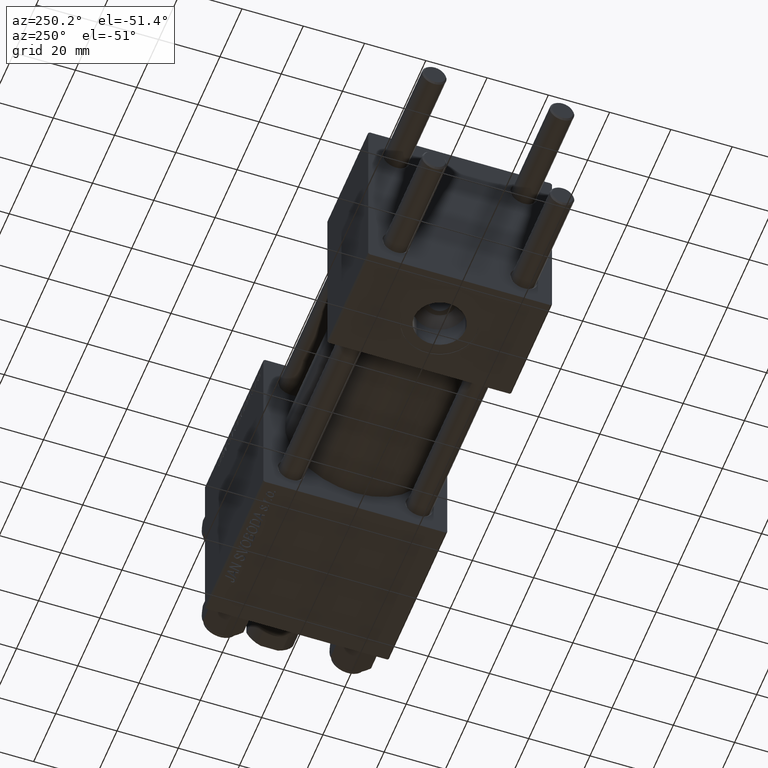
[diagram: clean part render]
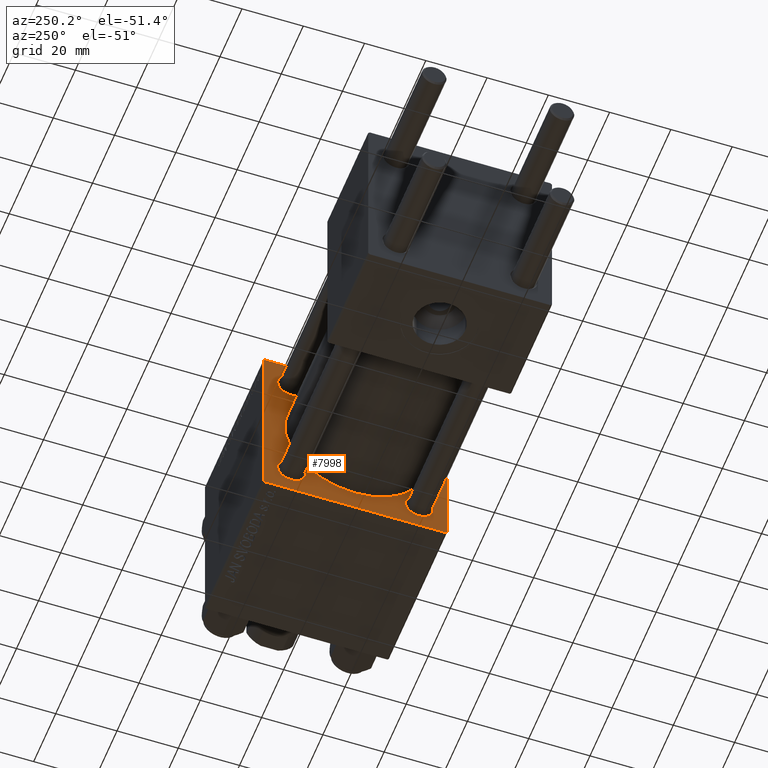
[diagram: same view with one face highlighted and labeled with its STEP entity id]
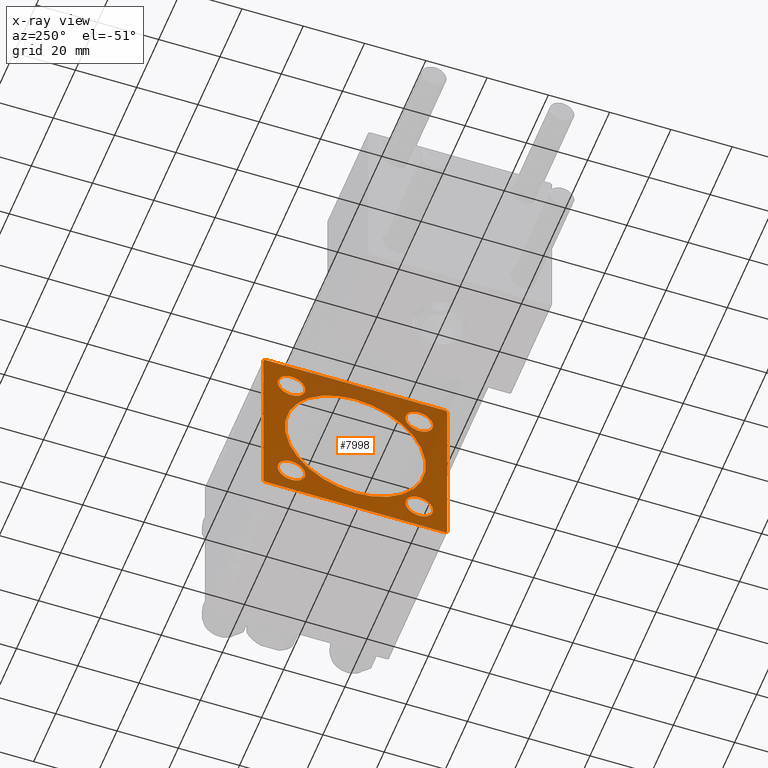
[diagram: x-ray of the same camera — body ghosted, the highlighted face saturated]
A machine part, auxiliary view. The second image highlights one B-rep face of the part: STEP entity #7998.
The next image is the same camera in x-ray: the body ghosted, the highlighted face saturated — about 37% of this face is hidden behind the body in this view.
In plain terms, the highlighted planar face has unit normal (-1, 0, 0).
Its self-contained STEP definition (entity closure, byte-faithful):
#104 = CARTESIAN_POINT ( 'NONE',  ( 95.00000000000000000, 20.84999999999999787, -20.85000000000000142 ) ) ;
#160 = ORIENTED_EDGE ( 'NONE', *, *, #10586, .T. ) ;
#241 = CARTESIAN_POINT ( 'NONE',  ( 95.00000000000000000, 20.84999999999999787, 25.35000000000000497 ) ) ;
#403 = EDGE_CURVE ( 'NONE', #39209, #12441, #2060, .T. ) ;
#628 = VECTOR ( 'NONE', #6185, 1000.000000000000000 ) ;
#704 = DIRECTION ( 'NONE',  ( -0.000000000000000000, -0.7071067811865474617, -0.7071067811865474617 ) ) ;
#978 = CARTESIAN_POINT ( 'NONE',  ( 95.00000000000000000, -29.74999999999999645, -29.74999999999999645 ) ) ;
#1209 = CARTESIAN_POINT ( 'NONE',  ( 95.00000000000000000, 0.000000000000000000, 23.00000000000000000 ) ) ;
#1440 = CIRCLE ( 'NONE', #48973, 4.500000000000003553 ) ;
#1507 = CARTESIAN_POINT ( 'NONE',  ( 95.00000000000000000, 20.84999999999999787, 20.85000000000000142 ) ) ;
#1607 = VERTEX_POINT ( 'NONE', #25981 ) ;
#1696 = DIRECTION ( 'NONE',  ( 0.000000000000000000, 0.000000000000000000, 1.000000000000000000 ) ) ;
#1842 = ORIENTED_EDGE ( 'NONE', *, *, #20306, .T. ) ;
#1906 = EDGE_CURVE ( 'NONE', #12441, #39209, #23956, .T. ) ;
#1926 = EDGE_LOOP ( 'NONE', ( #31757, #39170 ) ) ;
#2060 = CIRCLE ( 'NONE', #22978, 23.00000000000000000 ) ;
#2186 = DIRECTION ( 'NONE',  ( 0.000000000000000000, 0.7071067811865474617, -0.7071067811865474617 ) ) ;
#2262 = CIRCLE ( 'NONE', #28860, 4.500000000000003553 ) ;
#2539 = VERTEX_POINT ( 'NONE', #30198 ) ;
#2573 = DIRECTION ( 'NONE',  ( 0.000000000000000000, 0.000000000000000000, -1.000000000000000000 ) ) ;
#2684 = LINE ( 'NONE', #25655, #18328 ) ;
#2752 = CARTESIAN_POINT ( 'NONE',  ( 95.00000000000000000, -30.00000000000000000, 29.49999999999999289 ) ) ;
#3003 = EDGE_CURVE ( 'NONE', #42120, #2539, #8818, .T. ) ;
#3127 = DIRECTION ( 'NONE',  ( 0.000000000000000000, 0.000000000000000000, -1.000000000000000000 ) ) ;
#3581 = VERTEX_POINT ( 'NONE', #39211 ) ;
#3850 = EDGE_CURVE ( 'NONE', #37205, #1607, #27964, .T. ) ;
#3858 = CARTESIAN_POINT ( 'NONE',  ( 95.00000000000000000, 20.84999999999999787, -16.34999999999999787 ) ) ;
#3968 = FACE_BOUND ( 'NONE', #37602, .T. ) ;
#4087 = DIRECTION ( 'NONE',  ( 0.000000000000000000, -0.7071067811865474617, 0.7071067811865474617 ) ) ;
#4159 = DIRECTION ( 'NONE',  ( 0.000000000000000000, 0.000000000000000000, -1.000000000000000000 ) ) ;
#4222 = AXIS2_PLACEMENT_3D ( 'NONE', #49653, #46113, #35007 ) ;
#5252 = CARTESIAN_POINT ( 'NONE',  ( 95.00000000000000000, -29.74999999999999645, 29.74999999999999645 ) ) ;
#5544 = VERTEX_POINT ( 'NONE', #19716 ) ;
#6185 = DIRECTION ( 'NONE',  ( 0.000000000000000000, -1.000000000000000000, -1.156482317317871478E-16 ) ) ;
#6378 = CARTESIAN_POINT ( 'NONE',  ( 95.00000000000000000, 0.000000000000000000, 0.000000000000000000 ) ) ;
#7673 = CARTESIAN_POINT ( 'NONE',  ( 95.00000000000000000, -30.00000000000000000, 29.99999999999999289 ) ) ;
#7810 = ORIENTED_EDGE ( 'NONE', *, *, #22479, .T. ) ;
#7998 = ADVANCED_FACE ( 'NONE', ( #3968, #30716, #34260, #43083, #31462, #19614 ), #18869, .T. ) ;
#8400 = VECTOR ( 'NONE', #4087, 1000.000000000000114 ) ;
#8438 = EDGE_LOOP ( 'NONE', ( #31321, #29236 ) ) ;
#8791 = DIRECTION ( 'NONE',  ( -0.000000000000000000, 0.7071067811865474617, 0.7071067811865474617 ) ) ;
#8818 = LINE ( 'NONE', #978, #8400 ) ;
#9492 = EDGE_CURVE ( 'NONE', #5544, #24647, #12333, .T. ) ;
#9502 = CARTESIAN_POINT ( 'NONE',  ( 95.00000000000000000, -20.84999999999999076, 25.35000000000000853 ) ) ;
#9745 = ORIENTED_EDGE ( 'NONE', *, *, #10522, .T. ) ;
#10341 = DIRECTION ( 'NONE',  ( 0.000000000000000000, 0.000000000000000000, 1.000000000000000000 ) ) ;
#10522 = EDGE_CURVE ( 'NONE', #36486, #24917, #48937, .T. ) ;
#10563 = ORIENTED_EDGE ( 'NONE', *, *, #37800, .F. ) ;
#10586 = EDGE_CURVE ( 'NONE', #21100, #21248, #2684, .T. ) ;
#10960 = CARTESIAN_POINT ( 'NONE',  ( 95.00000000000000000, -29.50000000000000000, -30.00000000000000000 ) ) ;
#11613 = EDGE_CURVE ( 'NONE', #24647, #5544, #1440, .T. ) ;
#12333 = CIRCLE ( 'NONE', #20372, 4.500000000000003553 ) ;
#12441 = VERTEX_POINT ( 'NONE', #1209 ) ;
#12557 = ORIENTED_EDGE ( 'NONE', *, *, #3850, .T. ) ;
#12777 = DIRECTION ( 'NONE',  ( 1.000000000000000000, 0.000000000000000000, 0.000000000000000000 ) ) ;
#12868 = EDGE_CURVE ( 'NONE', #21100, #1607, #13271, .T. ) ;
#13080 = DIRECTION ( 'NONE',  ( 0.000000000000000000, 0.000000000000000000, 1.000000000000000000 ) ) ;
#13258 = EDGE_CURVE ( 'NONE', #34440, #3581, #44266, .T. ) ;
#13271 = LINE ( 'NONE', #17541, #628 ) ;
#13327 = CARTESIAN_POINT ( 'NONE',  ( 95.00000000000000000, 20.84999999999999787, -20.85000000000000142 ) ) ;
#13889 = CARTESIAN_POINT ( 'NONE',  ( 95.00000000000000000, 30.00000000000000000, 30.00000000000000000 ) ) ;
#14618 = DIRECTION ( 'NONE',  ( 0.000000000000000000, 0.000000000000000000, 1.000000000000000000 ) ) ;
#15512 = DIRECTION ( 'NONE',  ( 1.000000000000000000, -0.000000000000000000, 0.000000000000000000 ) ) ;
#16301 = DIRECTION ( 'NONE',  ( 0.000000000000000000, -1.000000000000000000, -1.156482317317871478E-16 ) ) ;
#16419 = CARTESIAN_POINT ( 'NONE',  ( 95.00000000000000000, -20.84999999999999076, 16.35000000000000142 ) ) ;
#16508 = ORIENTED_EDGE ( 'NONE', *, *, #42802, .T. ) ;
#16726 = EDGE_CURVE ( 'NONE', #21248, #39325, #25496, .T. ) ;
#17312 = ORIENTED_EDGE ( 'NONE', *, *, #37319, .T. ) ;
#17324 = VECTOR ( 'NONE', #3127, 1000.000000000000000 ) ;
#17541 = CARTESIAN_POINT ( 'NONE',  ( 95.00000000000000000, 30.00000000000000000, 30.00000000000000000 ) ) ;
#18328 = VECTOR ( 'NONE', #2186, 1000.000000000000114 ) ;
#18869 = PLANE ( 'NONE',  #4222 ) ;
#19614 = FACE_OUTER_BOUND ( 'NONE', #29549, .T. ) ;
#19716 = CARTESIAN_POINT ( 'NONE',  ( 95.00000000000000000, 20.84999999999999787, 16.34999999999999787 ) ) ;
#19807 = CARTESIAN_POINT ( 'NONE',  ( 95.00000000000000000, 0.000000000000000000, 0.000000000000000000 ) ) ;
#20306 = EDGE_CURVE ( 'NONE', #37108, #29425, #37852, .T. ) ;
#20372 = AXIS2_PLACEMENT_3D ( 'NONE', #1507, #28765, #36572 ) ;
#20765 = DIRECTION ( 'NONE',  ( 1.000000000000000000, -0.000000000000000000, 0.000000000000000000 ) ) ;
#20874 = CARTESIAN_POINT ( 'NONE',  ( 95.00000000000000000, -20.84999999999999076, -20.85000000000000497 ) ) ;
#21100 = VERTEX_POINT ( 'NONE', #36377 ) ;
#21122 = ORIENTED_EDGE ( 'NONE', *, *, #13258, .T. ) ;
#21248 = VERTEX_POINT ( 'NONE', #30289 ) ;
#21424 = AXIS2_PLACEMENT_3D ( 'NONE', #40857, #44896, #10341 ) ;
#22479 = EDGE_CURVE ( 'NONE', #3581, #34440, #30642, .T. ) ;
#22978 = AXIS2_PLACEMENT_3D ( 'NONE', #19807, #46544, #4159 ) ;
#23145 = AXIS2_PLACEMENT_3D ( 'NONE', #6378, #12777, #2573 ) ;
#23199 = ORIENTED_EDGE ( 'NONE', *, *, #12868, .F. ) ;
#23708 = ORIENTED_EDGE ( 'NONE', *, *, #16726, .T. ) ;
#23956 = CIRCLE ( 'NONE', #23145, 23.00000000000000000 ) ;
#24564 = DIRECTION ( 'NONE',  ( 0.000000000000000000, 0.000000000000000000, 1.000000000000000000 ) ) ;
#24647 = VERTEX_POINT ( 'NONE', #241 ) ;
#24917 = VERTEX_POINT ( 'NONE', #48112 ) ;
#25496 = LINE ( 'NONE', #13889, #48874 ) ;
#25655 = CARTESIAN_POINT ( 'NONE',  ( 95.00000000000000000, 29.74999999999999645, 29.74999999999999645 ) ) ;
#25981 = CARTESIAN_POINT ( 'NONE',  ( 95.00000000000000000, -29.50000000000000000, 29.99999999999999289 ) ) ;
#26713 = CARTESIAN_POINT ( 'NONE',  ( 95.00000000000000000, 20.84999999999999787, 20.85000000000000142 ) ) ;
#27187 = AXIS2_PLACEMENT_3D ( 'NONE', #13327, #36028, #13080 ) ;
#27964 = LINE ( 'NONE', #5252, #47917 ) ;
#28570 = ORIENTED_EDGE ( 'NONE', *, *, #3003, .T. ) ;
#28765 = DIRECTION ( 'NONE',  ( 1.000000000000000000, -0.000000000000000000, 0.000000000000000000 ) ) ;
#28860 = AXIS2_PLACEMENT_3D ( 'NONE', #104, #15512, #35175 ) ;
#29236 = ORIENTED_EDGE ( 'NONE', *, *, #9492, .T. ) ;
#29425 = VERTEX_POINT ( 'NONE', #9502 ) ;
#29482 = ORIENTED_EDGE ( 'NONE', *, *, #46623, .T. ) ;
#29549 = EDGE_LOOP ( 'NONE', ( #46991, #28570, #10563, #12557, #23199, #160, #23708, #17312 ) ) ;
#29735 = AXIS2_PLACEMENT_3D ( 'NONE', #32116, #20765, #24564 ) ;
#30198 = CARTESIAN_POINT ( 'NONE',  ( 95.00000000000000000, -30.00000000000000000, -29.49999999999998579 ) ) ;
#30202 = VECTOR ( 'NONE', #704, 1000.000000000000114 ) ;
#30289 = CARTESIAN_POINT ( 'NONE',  ( 95.00000000000000000, 30.00000000000000000, 29.50000000000000000 ) ) ;
#30642 = CIRCLE ( 'NONE', #37926, 4.500000000000003553 ) ;
#30716 = FACE_BOUND ( 'NONE', #8438, .T. ) ;
#31321 = ORIENTED_EDGE ( 'NONE', *, *, #11613, .T. ) ;
#31430 = LINE ( 'NONE', #43052, #38344 ) ;
#31462 = FACE_BOUND ( 'NONE', #1926, .T. ) ;
#31757 = ORIENTED_EDGE ( 'NONE', *, *, #1906, .T. ) ;
#32116 = CARTESIAN_POINT ( 'NONE',  ( 95.00000000000000000, -20.84999999999999076, -20.85000000000000497 ) ) ;
#33051 = DIRECTION ( 'NONE',  ( 0.000000000000000000, 0.000000000000000000, -1.000000000000000000 ) ) ;
#33126 = EDGE_LOOP ( 'NONE', ( #9745, #29482 ) ) ;
#33728 = CARTESIAN_POINT ( 'NONE',  ( 95.00000000000000000, 30.00000000000000000, -29.49999999999997868 ) ) ;
#34260 = FACE_BOUND ( 'NONE', #33126, .T. ) ;
#34288 = CARTESIAN_POINT ( 'NONE',  ( 95.00000000000000000, 29.74999999999999645, -29.74999999999999645 ) ) ;
#34440 = VERTEX_POINT ( 'NONE', #45928 ) ;
#35007 = DIRECTION ( 'NONE',  ( -0.000000000000000000, 0.000000000000000000, 1.000000000000000000 ) ) ;
#35175 = DIRECTION ( 'NONE',  ( 0.000000000000000000, 0.000000000000000000, 1.000000000000000000 ) ) ;
#35449 = AXIS2_PLACEMENT_3D ( 'NONE', #48955, #43823, #46853 ) ;
#36028 = DIRECTION ( 'NONE',  ( 1.000000000000000000, -0.000000000000000000, 0.000000000000000000 ) ) ;
#36273 = DIRECTION ( 'NONE',  ( 1.000000000000000000, -0.000000000000000000, 0.000000000000000000 ) ) ;
#36377 = CARTESIAN_POINT ( 'NONE',  ( 95.00000000000000000, 29.50000000000000000, 30.00000000000000000 ) ) ;
#36486 = VERTEX_POINT ( 'NONE', #3858 ) ;
#36572 = DIRECTION ( 'NONE',  ( 0.000000000000000000, 0.000000000000000000, 1.000000000000000000 ) ) ;
#37108 = VERTEX_POINT ( 'NONE', #16419 ) ;
#37205 = VERTEX_POINT ( 'NONE', #2752 ) ;
#37319 = EDGE_CURVE ( 'NONE', #39325, #40292, #45893, .T. ) ;
#37602 = EDGE_LOOP ( 'NONE', ( #16508, #1842 ) ) ;
#37698 = LINE ( 'NONE', #7673, #17324 ) ;
#37800 = EDGE_CURVE ( 'NONE', #37205, #2539, #37698, .T. ) ;
#37852 = CIRCLE ( 'NONE', #35449, 4.500000000000003553 ) ;
#37926 = AXIS2_PLACEMENT_3D ( 'NONE', #20874, #36273, #1696 ) ;
#38344 = VECTOR ( 'NONE', #16301, 1000.000000000000000 ) ;
#39170 = ORIENTED_EDGE ( 'NONE', *, *, #403, .T. ) ;
#39209 = VERTEX_POINT ( 'NONE', #41170 ) ;
#39211 = CARTESIAN_POINT ( 'NONE',  ( 95.00000000000000000, -20.84999999999999076, -16.35000000000000142 ) ) ;
#39325 = VERTEX_POINT ( 'NONE', #33728 ) ;
#39630 = EDGE_CURVE ( 'NONE', #40292, #42120, #31430, .T. ) ;
#40292 = VERTEX_POINT ( 'NONE', #44917 ) ;
#40857 = CARTESIAN_POINT ( 'NONE',  ( 95.00000000000000000, -20.84999999999999076, 20.85000000000000497 ) ) ;
#41170 = CARTESIAN_POINT ( 'NONE',  ( 95.00000000000000000, 2.816687638038911957E-15, -23.00000000000000000 ) ) ;
#42099 = DIRECTION ( 'NONE',  ( 1.000000000000000000, -0.000000000000000000, 0.000000000000000000 ) ) ;
#42120 = VERTEX_POINT ( 'NONE', #10960 ) ;
#42802 = EDGE_CURVE ( 'NONE', #29425, #37108, #48005, .T. ) ;
#42869 = EDGE_LOOP ( 'NONE', ( #7810, #21122 ) ) ;
#43052 = CARTESIAN_POINT ( 'NONE',  ( 95.00000000000000000, 30.00000000000000000, -29.99999999999999289 ) ) ;
#43083 = FACE_BOUND ( 'NONE', #42869, .T. ) ;
#43823 = DIRECTION ( 'NONE',  ( 1.000000000000000000, -0.000000000000000000, 0.000000000000000000 ) ) ;
#44266 = CIRCLE ( 'NONE', #29735, 4.500000000000003553 ) ;
#44896 = DIRECTION ( 'NONE',  ( 1.000000000000000000, -0.000000000000000000, 0.000000000000000000 ) ) ;
#44917 = CARTESIAN_POINT ( 'NONE',  ( 95.00000000000000000, 29.50000000000000000, -29.99999999999999289 ) ) ;
#45893 = LINE ( 'NONE', #34288, #30202 ) ;
#45928 = CARTESIAN_POINT ( 'NONE',  ( 95.00000000000000000, -20.84999999999999076, -25.35000000000000853 ) ) ;
#46113 = DIRECTION ( 'NONE',  ( -1.000000000000000000, 0.000000000000000000, -0.000000000000000000 ) ) ;
#46544 = DIRECTION ( 'NONE',  ( 1.000000000000000000, 0.000000000000000000, 0.000000000000000000 ) ) ;
#46623 = EDGE_CURVE ( 'NONE', #24917, #36486, #2262, .T. ) ;
#46853 = DIRECTION ( 'NONE',  ( 0.000000000000000000, 0.000000000000000000, 1.000000000000000000 ) ) ;
#46991 = ORIENTED_EDGE ( 'NONE', *, *, #39630, .T. ) ;
#47917 = VECTOR ( 'NONE', #8791, 1000.000000000000114 ) ;
#48005 = CIRCLE ( 'NONE', #21424, 4.500000000000003553 ) ;
#48112 = CARTESIAN_POINT ( 'NONE',  ( 95.00000000000000000, 20.84999999999999787, -25.35000000000000497 ) ) ;
#48874 = VECTOR ( 'NONE', #33051, 1000.000000000000000 ) ;
#48937 = CIRCLE ( 'NONE', #27187, 4.500000000000003553 ) ;
#48955 = CARTESIAN_POINT ( 'NONE',  ( 95.00000000000000000, -20.84999999999999076, 20.85000000000000497 ) ) ;
#48973 = AXIS2_PLACEMENT_3D ( 'NONE', #26713, #42099, #14618 ) ;
#49653 = CARTESIAN_POINT ( 'NONE',  ( 95.00000000000000000, 0.000000000000000000, 0.000000000000000000 ) ) ;